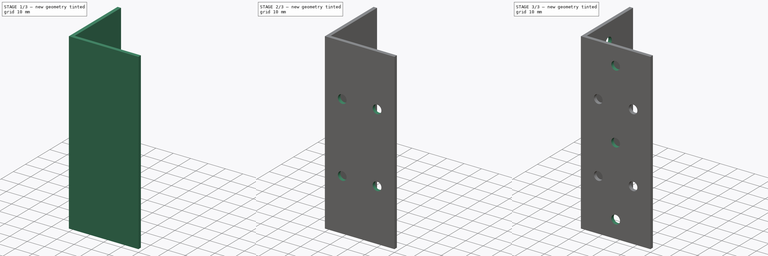
[diagram: build sequence overview — one tinted view per stage of 3, left to right]
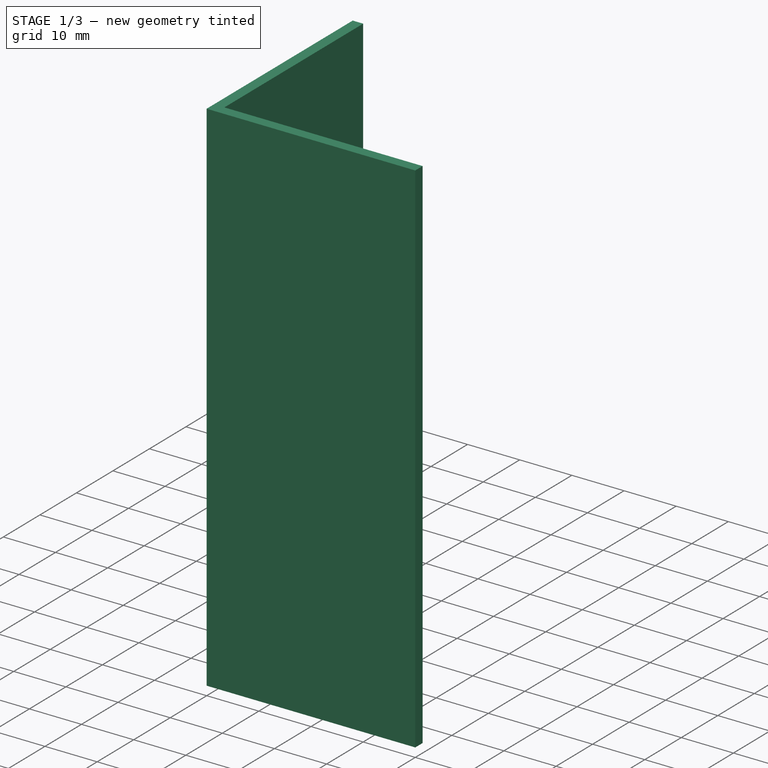
[diagram: stage 1 of 3 — iso view after this stage's code; geometry added in this stage tinted green]
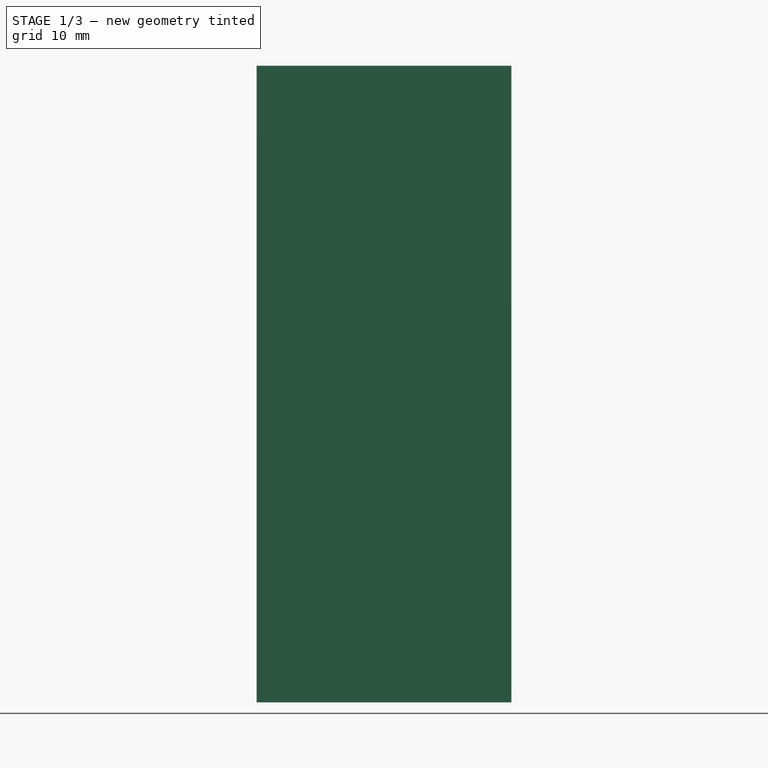
[diagram: stage 1 of 3 — front view after this stage's code; geometry added in this stage tinted green]
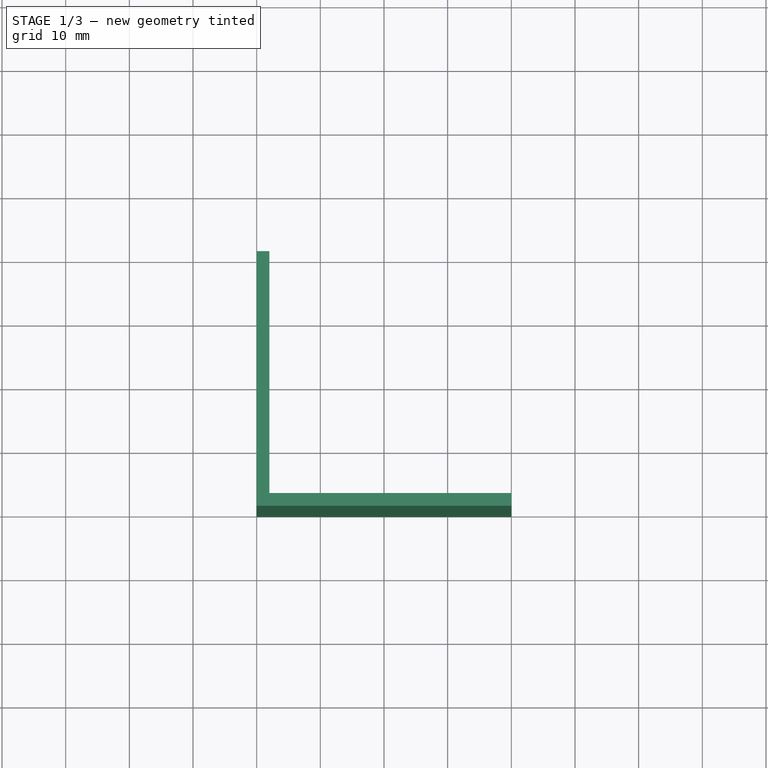
[diagram: stage 1 of 3 — top view after this stage's code; geometry added in this stage tinted green]
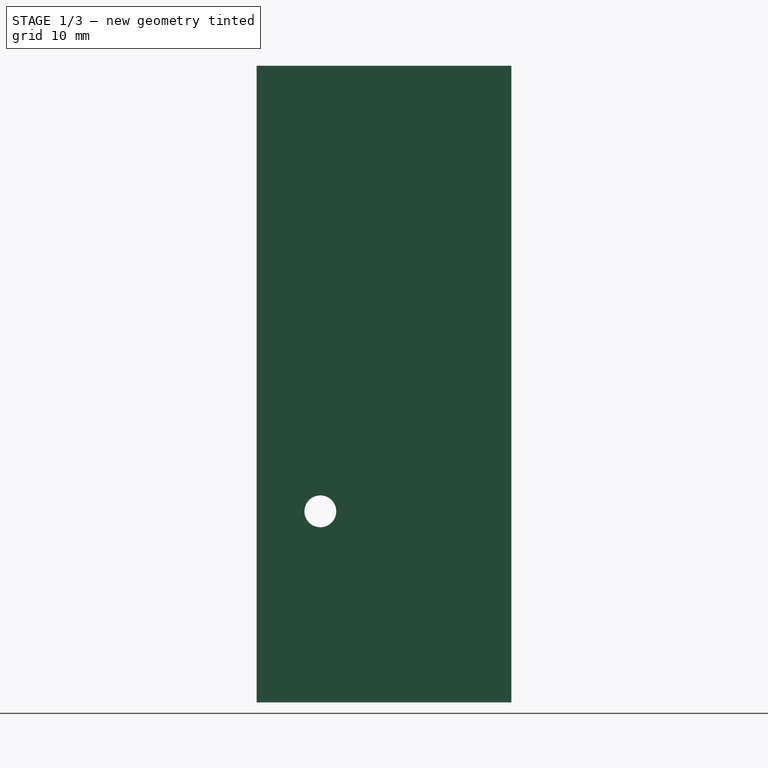
[diagram: stage 1 of 3 — right view after this stage's code; geometry added in this stage tinted green]
FCSTD DOCUMENT  (FreeCAD 1.1R20260325 (Git shallow))
Label: Angle_40_x_40_x_100_mm
License: All rights reserved
LicenseURL: http://en.wikipedia.org/wiki/All_rights_reserved
objects: Sketcher::SketchObject×3, PartDesign::Hole×2, PartDesign::Plane×2, PartDesign::Mirrored×2, PartDesign::PolarPattern×2, PartDesign::MultiTransform×2, App::LinkGroup×2, App::Point×2, PartDesign::Pad×1, PartDesign::LinearPattern×1, PartDesign::Body×1, App::Part×1
note: 32 computed .brp shape members not serialized (recipe doc carries the construction recipe); baked Part::Feature solids carry a one-line shape summary decoded from their .brp

FEATURE [Sketcher::SketchObject] Sketch
  ArcFitTolerance = 0
  AttachmentSupport = -> [XY_Plane001]
  ExternalTypes = [0]
  FullyConstrained = true
  MakeInternals = false
  MapMode = 5
  _ExternalGeoVersion = 0
  sketch-geometry (6):
    g0: LineSegment StartX=0 StartY=40 StartZ=0 EndX=0 EndY=0 EndZ=0
    g1: LineSegment StartX=2 StartY=2 StartZ=0 EndX=2 EndY=40 EndZ=0
    g2: LineSegment StartX=2 StartY=40 StartZ=0 EndX=0 EndY=40 EndZ=0
    g3: LineSegment StartX=0 StartY=0 StartZ=0 EndX=40 EndY=0 EndZ=0
    g4: LineSegment StartX=40 StartY=0 StartZ=0 EndX=40 EndY=2 EndZ=0
    g5: LineSegment StartX=40 StartY=2 StartZ=0 EndX=2 EndY=2 EndZ=0
  constraints (17):
    c: PointOnObject(g0,g-2)
    c: Coincident(g0,g-1)
    c: Vertical(g1)
    c: Coincident(g1,g2)
    c: Coincident(g2,g0)
    c: Horizontal(g2)
    c: DistanceY(g0,g0) = 40
    c: PointOnObject(g3,g-1)
    c: Coincident(g3,g4)
    c: Vertical(g4)
    c: Coincident(g4,g5)
    c: Horizontal(g5)
    c: Coincident(g3,g0)
    c: Coincident(g5,g1)
    c: DistanceY(g4,g4) = 2
    c: Equal(g2,g4)
    c: Equal(g3,g0)
FEATURE [PartDesign::Pad] Pad  label="Angle"
  Direction = (0,0,1)
  Length = 100
  Length2 = 10
  Profile = -> Sketch
  ReferenceAxis = -> Sketch [N_Axis]
  SideType = 0
  Suppressed = false
  Type = 0
  Type2 = 0
FEATURE [Sketcher::SketchObject] Sketch001
  ArcFitTolerance = 0
  AttachmentOffset = pos=(0,0,2) rot=(0,0,1;0rad)
  AttachmentSupport = -> [YZ_Plane001]
  ExternalTypes = [0]
  FullyConstrained = true
  MakeInternals = false
  MapMode = 5
  Placement = pos=(2,0,0) rot=(0.57735,0.57735,0.57735;2.0944rad)
  _ExternalGeoVersion = 0
  sketch-geometry (1):
    g0: Circle CenterX=10 CenterY=30 CenterZ=0 NormalX=0 NormalY=0 NormalZ=1 AngleXU=0 Radius=2.5
  constraints (3):
    c: DistanceY(g-1,g0) = 30
    c: DistanceX(g-1,g0) = 10
    c: Diameter(g0) = 5
FEATURE [PartDesign::Hole] Hole
  BaseFeature = -> Pad
  BaseProfileType = 6
  CustomThreadClearance = 0
  Depth = 232.08
  DepthType = 1
  Diameter = 5
  DrillForDepth = false
  DrillPoint = 1
  DrillPointAngle = 118
  HoleCutCountersinkAngle = 90
  HoleCutCustomValues = false
  HoleCutDepth = 0
  HoleCutDiameter = 6.1
  HoleCutType = 0
  ModelThread = false
  Profile = -> Sketch001
  Suppressed = false
  Tapered = false
  TaperedAngle = 90
  ThreadClass = 0
  ThreadDepth = 232.08
  ThreadDepthType = 0
  ThreadDiameter = 5
  ThreadDirection = 0
  ThreadFit = 0
  ThreadSize = 0
  ThreadType = 0
  Threaded = false
  UseCustomThreadClearance = false
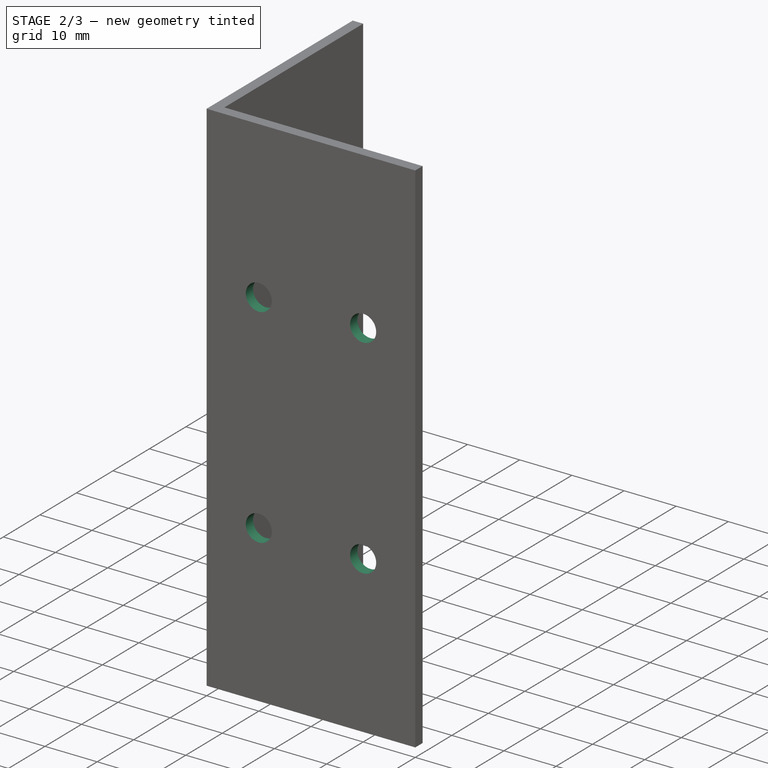
[diagram: stage 2 of 3 — iso view after this stage's code; geometry added in this stage tinted green]
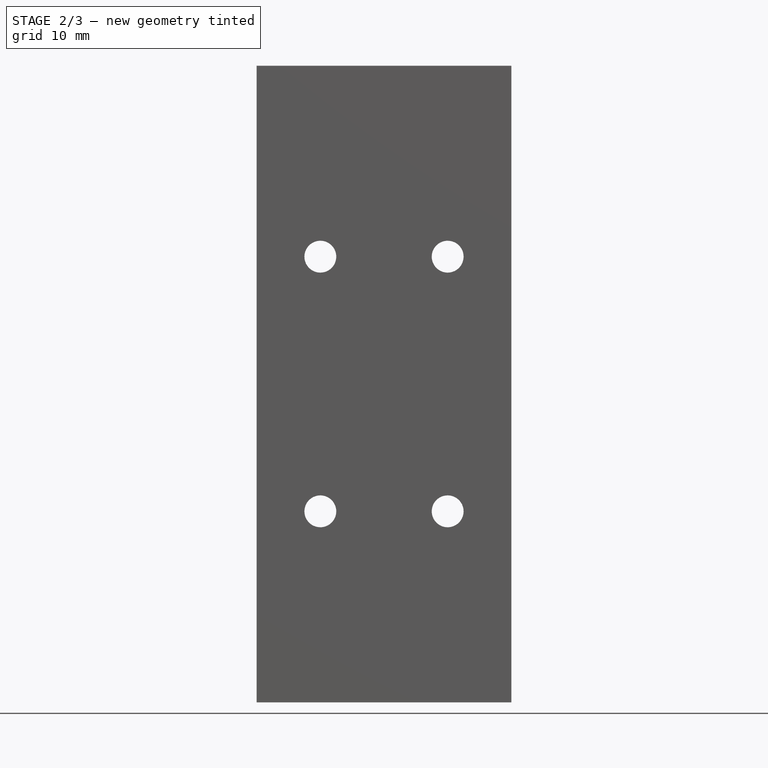
[diagram: stage 2 of 3 — front view after this stage's code; geometry added in this stage tinted green]
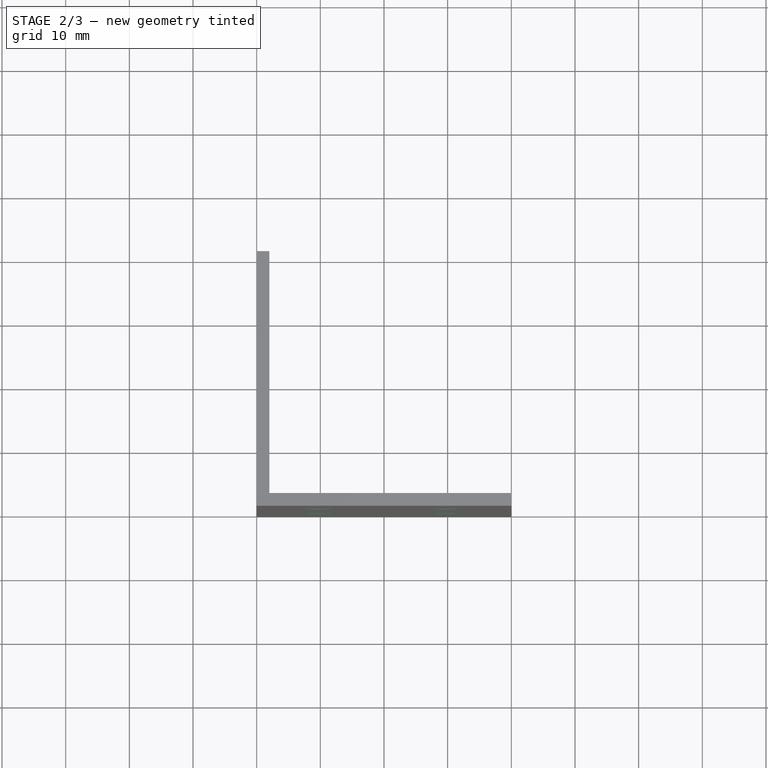
[diagram: stage 2 of 3 — top view after this stage's code; geometry added in this stage tinted green]
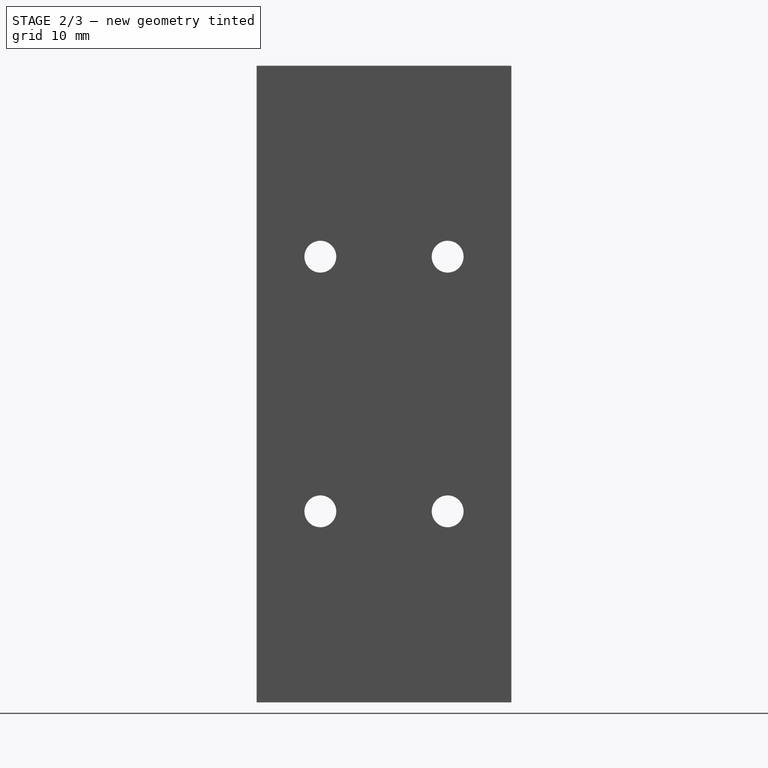
[diagram: stage 2 of 3 — right view after this stage's code; geometry added in this stage tinted green]
FEATURE [PartDesign::Plane] DatumPlane
  AttachmentOffset = pos=(0,0,-50) rot=(0,0,1;0rad)
  AttachmentSupport = -> [Hole]
  Length = 78
  MapMode = 5
  Placement = pos=(0,0,50) rot=(1,0,0;3.14159rad)
  ResizeMode = 0
  Width = 78
FEATURE [PartDesign::Plane] DatumPlane001
  AttachmentOffset = pos=(0,0,-20) rot=(0,0,1;0rad)
  AttachmentSupport = -> [Hole]
  Length = 83.0278
  MapMode = 5
  Placement = pos=(0,20,4.4e-15) rot=(0,0.707107,0.707107;3.14159rad)
  ResizeMode = 0
  Width = 143.028
FEATURE [PartDesign::Mirrored] Mirrored
  MirrorPlane = -> DatumPlane
  Suppressed = false
  TransformMode = 0
FEATURE [PartDesign::Mirrored] Mirrored001
  MirrorPlane = -> DatumPlane001
  Suppressed = false
  TransformMode = 0
FEATURE [Sketcher::SketchObject] Sketch002
  ArcFitTolerance = 0
  AttachmentOffset = pos=(0,0,2) rot=(0,0,1;0rad)
  AttachmentSupport = -> [YZ_Plane001]
  ExternalTypes = [0]
  FullyConstrained = true
  MakeInternals = false
  MapMode = 5
  Placement = pos=(2,0,0) rot=(0.57735,0.57735,0.57735;2.0944rad)
  _ExternalGeoVersion = 0
  sketch-geometry (1):
    g0: Circle CenterX=20 CenterY=10 CenterZ=0 NormalX=0 NormalY=0 NormalZ=1 AngleXU=0 Radius=2.5
  constraints (3):
    c: DistanceX(g-1,g0) = 20
    c: DistanceY(g-1,g0) = 10
    c: Diameter(g0) = 5
FEATURE [PartDesign::PolarPattern] PolarPattern
  Angle = 90
  Axis = -> Z_Axis001
  Mode = 0
  Occurrences = 2
  Offset = 120
  Reversed = true
  SpacingPattern = [0]
  Spacings = [-1]
  Suppressed = false
  TransformMode = 0
FEATURE [PartDesign::MultiTransform] MultiTransform
  BaseFeature = -> Hole
  Originals = -> [Hole]
  Suppressed = false
  TransformMode = 0
  Transformations = -> [Mirrored,Mirrored001,PolarPattern]
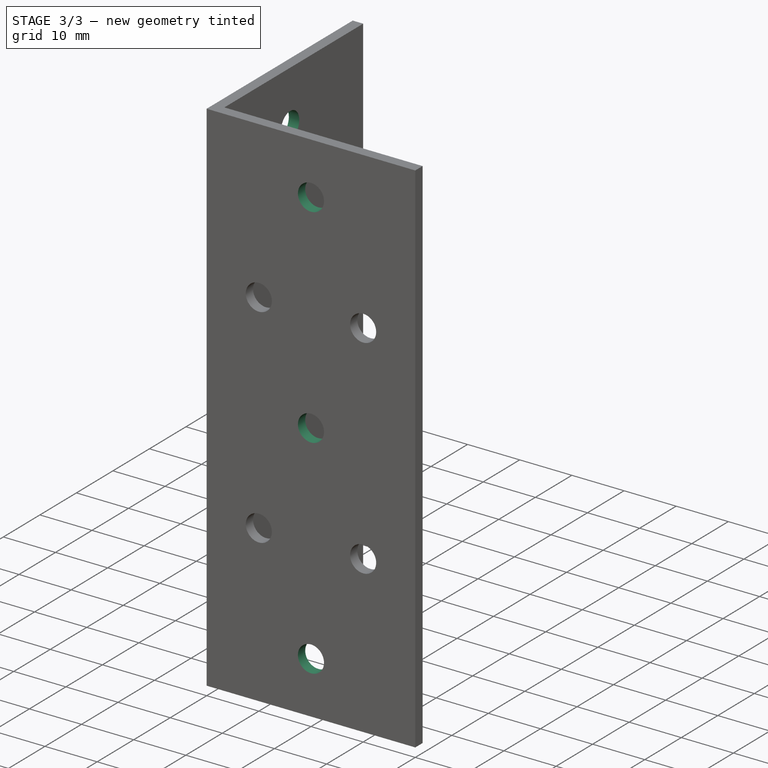
[diagram: stage 3 of 3 — iso view after this stage's code; geometry added in this stage tinted green]
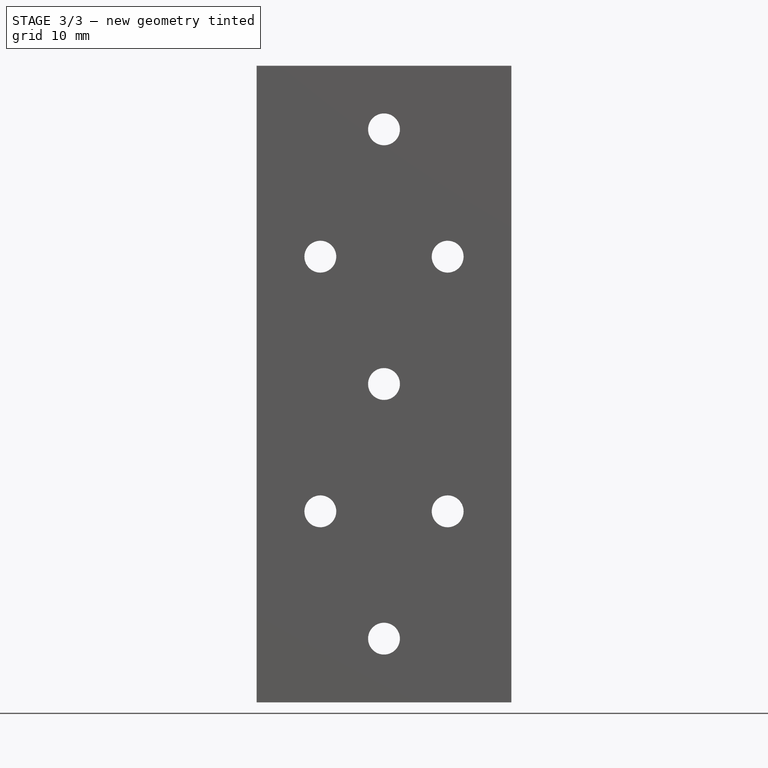
[diagram: stage 3 of 3 — front view after this stage's code; geometry added in this stage tinted green]
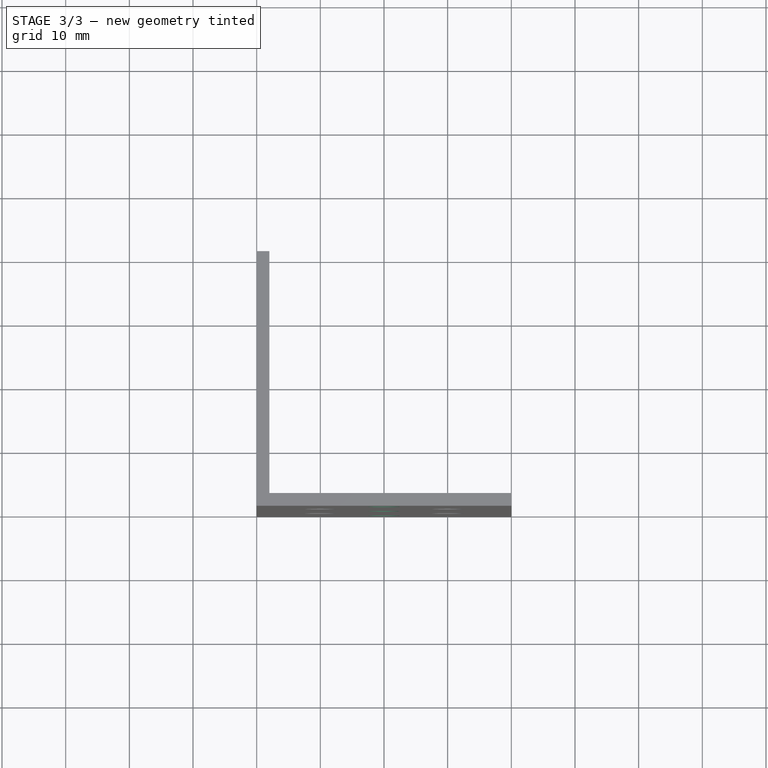
[diagram: stage 3 of 3 — top view after this stage's code; geometry added in this stage tinted green]
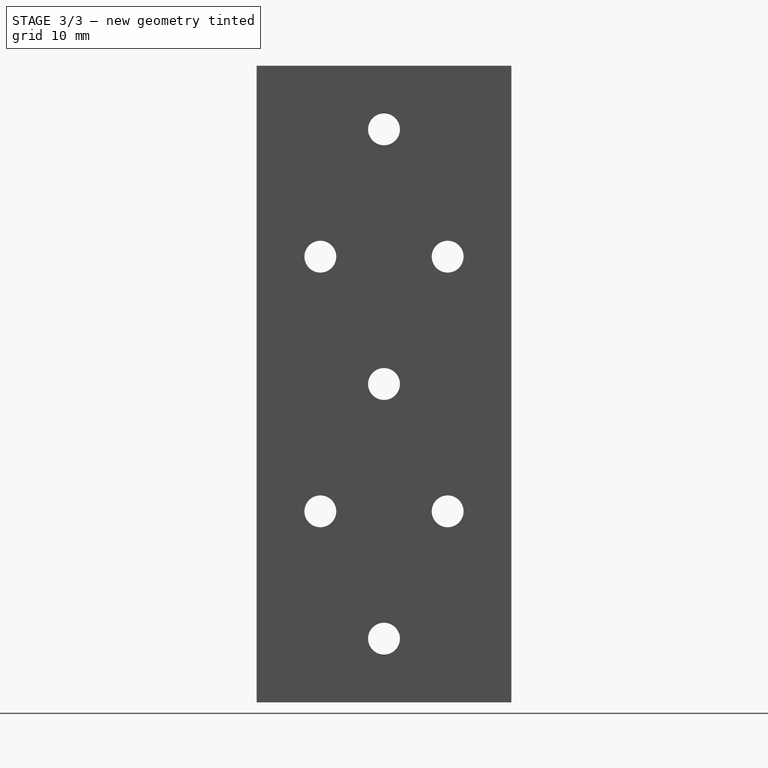
[diagram: stage 3 of 3 — right view after this stage's code; geometry added in this stage tinted green]
FEATURE [PartDesign::Hole] Hole001
  BaseFeature = -> MultiTransform
  BaseProfileType = 6
  CustomThreadClearance = 0
  Depth = 232.08
  DepthType = 1
  Diameter = 5
  DrillForDepth = false
  DrillPoint = 1
  DrillPointAngle = 118
  HoleCutCountersinkAngle = 90
  HoleCutCustomValues = false
  HoleCutDepth = 0
  HoleCutDiameter = 6.1
  HoleCutType = 0
  ModelThread = false
  Profile = -> Sketch002
  Suppressed = false
  Tapered = false
  TaperedAngle = 90
  ThreadClass = 0
  ThreadDepth = 232.08
  ThreadDepthType = 0
  ThreadDiameter = 5
  ThreadDirection = 0
  ThreadFit = 0
  ThreadSize = 0
  ThreadType = 0
  Threaded = false
  UseCustomThreadClearance = false
FEATURE [PartDesign::PolarPattern] PolarPattern001
  Angle = 90
  Axis = -> Z_Axis001
  Mode = 0
  Occurrences = 2
  Offset = 120
  Reversed = true
  SpacingPattern = [0]
  Spacings = [-1]
  Suppressed = false
  TransformMode = 0
FEATURE [PartDesign::LinearPattern] LinearPattern
  Direction = -> Z_Axis001
  Length = 80
  Length2 = 100
  Mode = 0
  Mode2 = 0
  Occurrences = 3
  Occurrences2 = 1
  Offset = 40
  Offset2 = 10
  Reversed2 = false
  SpacingPattern = [0]
  SpacingPattern2 = [0]
  Spacings = [-1,-1]
  Suppressed = false
  TransformMode = 0
FEATURE [PartDesign::MultiTransform] MultiTransform001
  BaseFeature = -> Hole001
  Originals = -> [Hole001]
  Suppressed = false
  TransformMode = 0
  Transformations = -> [LinearPattern,PolarPattern001]
FEATURE [PartDesign::Body] Body
  AllowCompound = true
  Group = -> [Sketch,Pad,Sketch001,Hole,DatumPlane,DatumPlane001,MultiTransform,Mirrored,Mirrored001,Sketch002,Hole001,PolarPattern001,LinearPattern,MultiTransform001,PolarPattern]
  Origin = -> Origin001
  Tip = -> Hole001
FEATURE [App::Part] Part
  Group = -> [Body]
  Origin = -> Origin
FEATURE [App::LinkGroup] LinkGroup  label="Angle 40 x 40 x 100 mm, link this"
  ElementList = -> [Part]
  LinkMode = 0
FEATURE [App::LinkGroup] LinkGroup001  label="Angle 40 x 40 x 100 mm, hide this"
  ElementList = -> [LinkGroup]
  LinkMode = 0
FEATURE [App::Point] Origin002  label="Origin"
  Role = Origin
FEATURE [App::Point] Origin003  label="Origin"
  Role = Origin
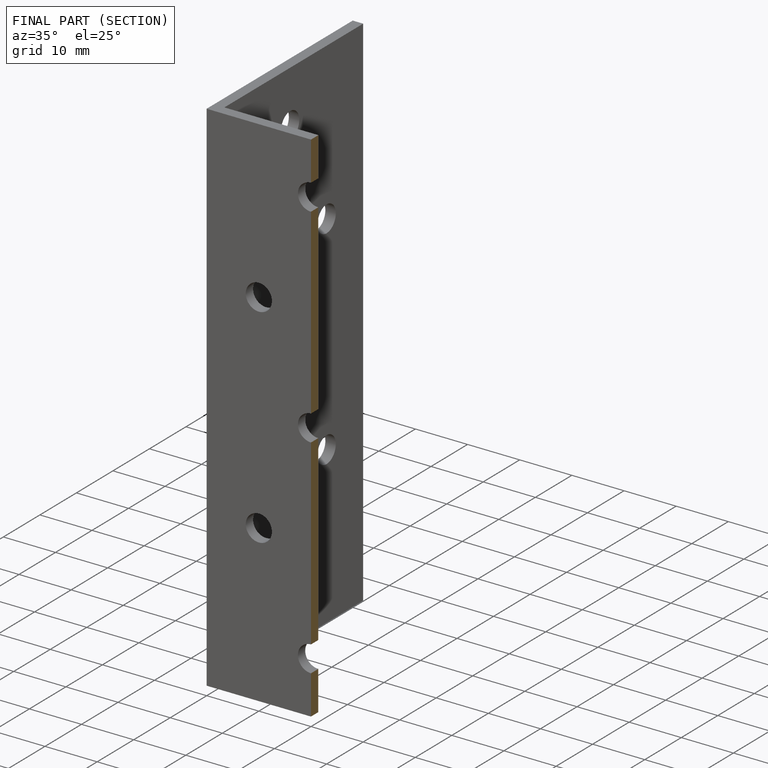
[diagram: finished part — half-section view (interior)]
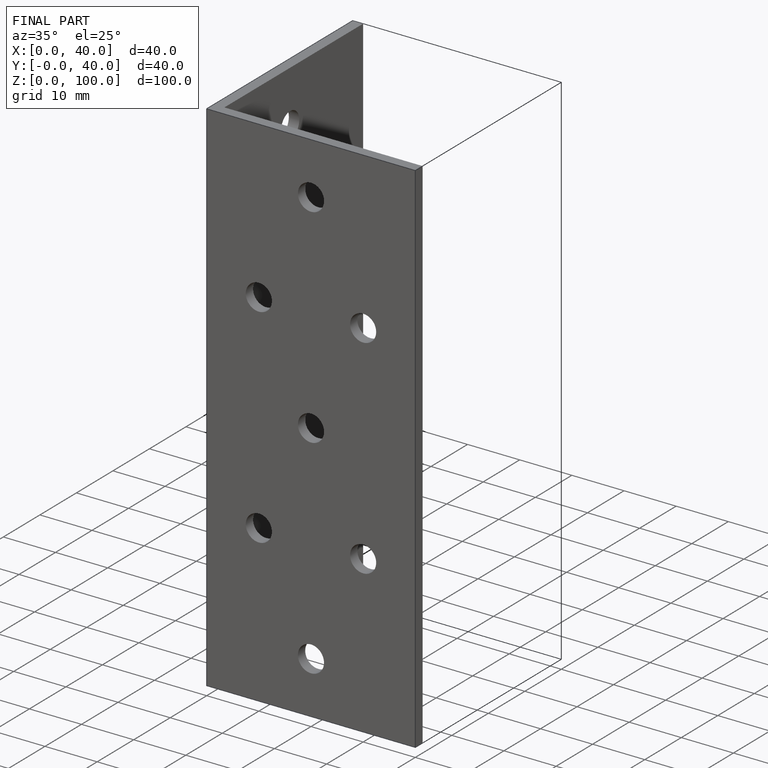
[diagram: finished part — iso view with bounding-box wireframe]
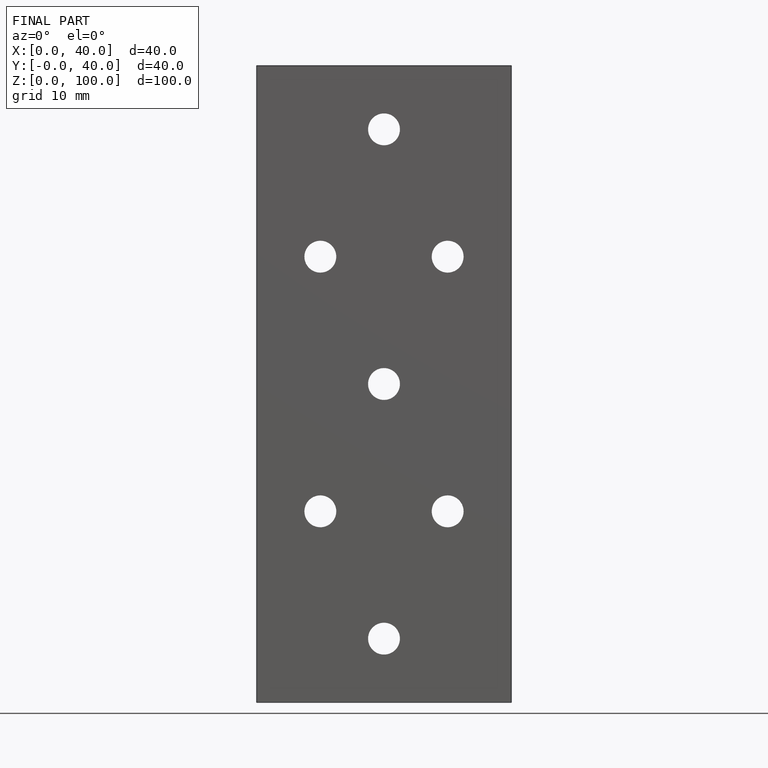
[diagram: finished part — front view with bounding-box wireframe]
